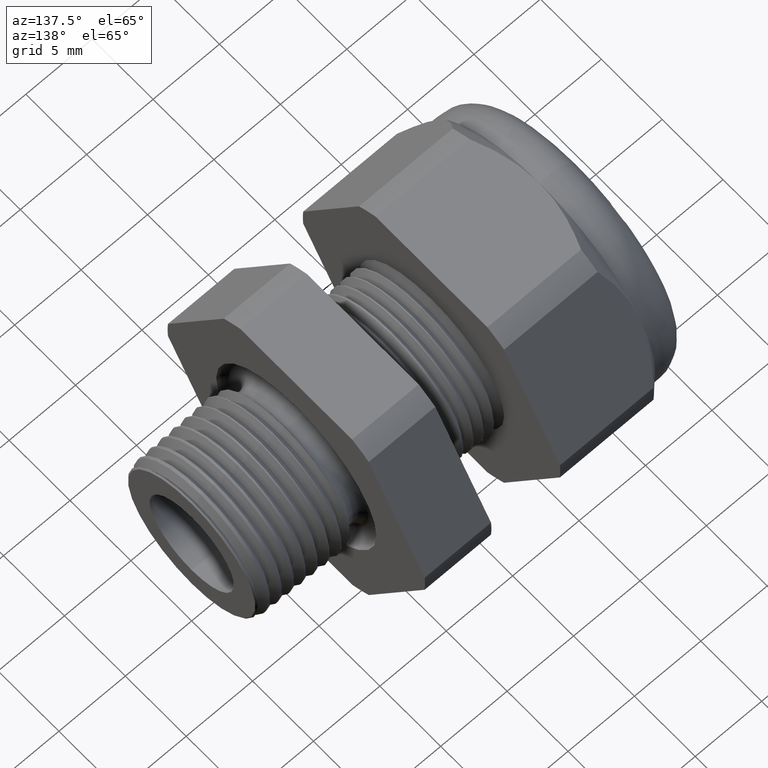
[diagram: clean part render]
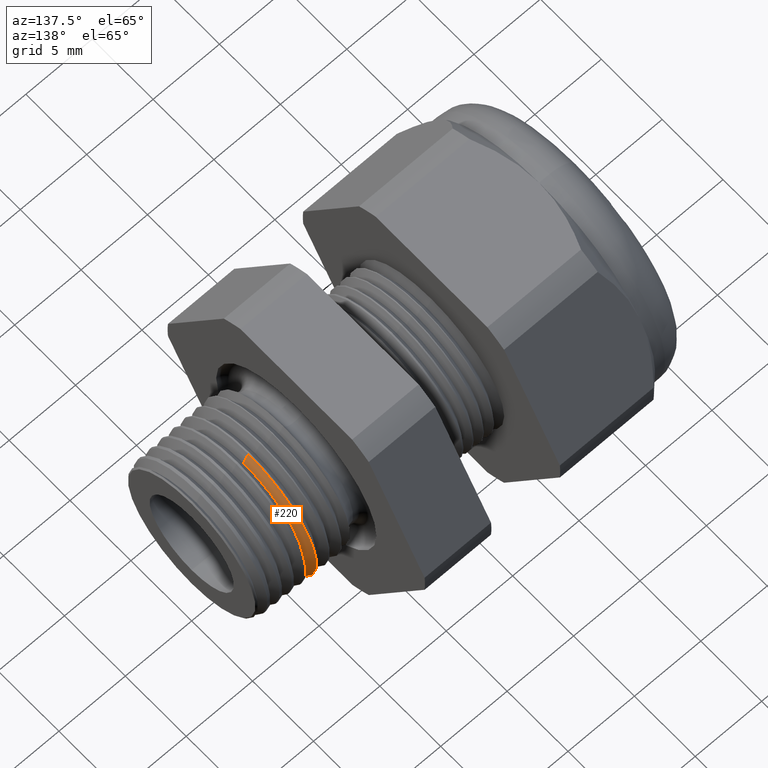
[diagram: same view with one face highlighted and labeled with its STEP entity id]
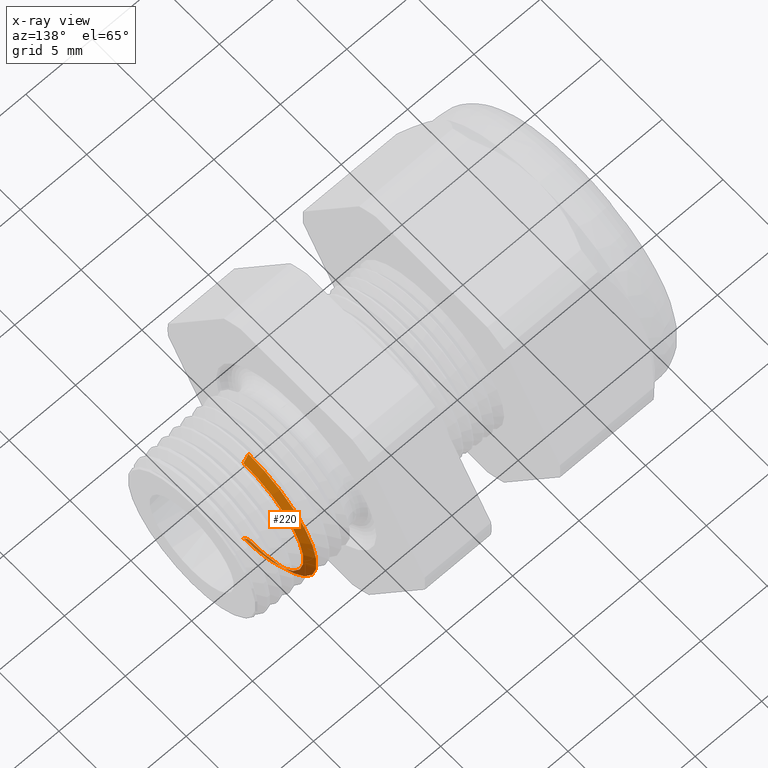
[diagram: x-ray of the same camera — body ghosted, the highlighted face saturated]
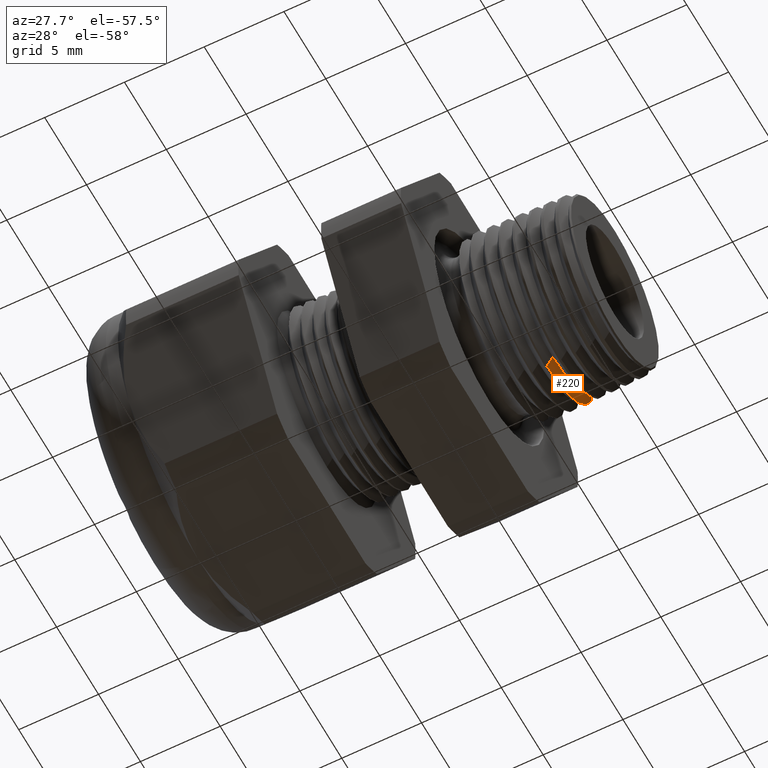
[diagram: same view with one face highlighted and labeled with its STEP entity id]
A machine part, auxiliary view. The second image highlights one B-rep face of the part: STEP entity #220.
The next image is the same camera in x-ray: the body ghosted, the highlighted face saturated — about 6% of this face is hidden behind the body in this view.
A second angle (auxiliary view) of the same face is appended — the face is thin or edge-on in the first view.
In plain terms, the highlighted conical surface has half-angle 61.5 deg.
Its self-contained STEP definition (entity closure, byte-faithful):
#68 = VERTEX_POINT ( 'NONE', #1497 ) ;
#72 = EDGE_CURVE ( 'NONE', #158, #68, #1496, .T. ) ;
#73 = ORIENTED_EDGE ( 'NONE', *, *, #72, .F. ) ;
#78 = EDGE_CURVE ( 'NONE', #225, #68, #1541, .T. ) ;
#79 = ORIENTED_EDGE ( 'NONE', *, *, #78, .T. ) ;
#156 = EDGE_CURVE ( 'NONE', #157, #158, #1649, .T. ) ;
#157 = VERTEX_POINT ( 'NONE', #1645 ) ;
#158 = VERTEX_POINT ( 'NONE', #1644 ) ;
#220 = ADVANCED_FACE ( 'NONE', ( #1764 ), #1826, .T. ) ;
#221 = EDGE_LOOP ( 'NONE', ( #222, #223, #79, #73 ) ) ;
#222 = ORIENTED_EDGE ( 'NONE', *, *, #156, .F. ) ;
#223 = ORIENTED_EDGE ( 'NONE', *, *, #224, .T. ) ;
#224 = EDGE_CURVE ( 'NONE', #157, #225, #1763, .T. ) ;
#225 = VERTEX_POINT ( 'NONE', #1818 ) ;
#1488 = DIRECTION ( 'NONE',  ( -0.4771587602596195100, 0.0000000000000000000, 0.8788171126619593900 ) ) ;
#1489 = VECTOR ( 'NONE', #1488, 39.37007874015748100 ) ;
#1490 = CARTESIAN_POINT ( 'NONE',  ( -0.1699999999999999600, 0.0000000000000000000, 0.2245029506528586900 ) ) ;
#1496 = LINE ( 'NONE', #1490, #1489 ) ;
#1497 = CARTESIAN_POINT ( 'NONE',  ( -0.1679808000774190800, 0.0000000000000000000, 0.2207840470223683400 ) ) ;
#1537 = DIRECTION ( 'NONE',  ( 0.0000000000000000000, 0.0000000000000000000, 1.000000000000000000 ) ) ;
#1538 = DIRECTION ( 'NONE',  ( 1.000000000000000000, 0.0000000000000000000, 0.0000000000000000000 ) ) ;
#1539 = CARTESIAN_POINT ( 'NONE',  ( -0.1679808000774190800, 0.0000000000000000000, 0.0000000000000000000 ) ) ;
#1540 = AXIS2_PLACEMENT_3D ( 'NONE', #1539, #1538, #1537 ) ;
#1541 = CIRCLE ( 'NONE', #1540, 0.2207840470223683400 ) ;
#1644 = CARTESIAN_POINT ( 'NONE',  ( -0.1534707356790751800, 0.0000000000000000000, 0.1940598328590287200 ) ) ;
#1645 = CARTESIAN_POINT ( 'NONE',  ( -0.1534707356790751800, 2.540186148213109900E-017, -0.1940598328590287200 ) ) ;
#1646 = DIRECTION ( 'NONE',  ( 0.0000000000000000000, 0.0000000000000000000, -1.000000000000000000 ) ) ;
#1647 = DIRECTION ( 'NONE',  ( 1.000000000000000000, 0.0000000000000000000, 0.0000000000000000000 ) ) ;
#1648 = AXIS2_PLACEMENT_3D ( 'NONE', #1655, #1647, #1646 ) ;
#1649 = CIRCLE ( 'NONE', #1648, 0.1940598328590287200 ) ;
#1655 = CARTESIAN_POINT ( 'NONE',  ( -0.1534707356790751800, 0.0000000000000000000, 0.0000000000000000000 ) ) ;
#1763 = LINE ( 'NONE', #1821, #1820 ) ;
#1764 = FACE_OUTER_BOUND ( 'NONE', #221, .T. ) ;
#1818 = CARTESIAN_POINT ( 'NONE',  ( -0.1679808000774190800, 2.704473888058243300E-017, -0.2207840470223683400 ) ) ;
#1819 = DIRECTION ( 'NONE',  ( -0.4771587602596195100, 1.076240564057387400E-016, -0.8788171126619593900 ) ) ;
#1820 = VECTOR ( 'NONE', #1819, 39.37007874015748100 ) ;
#1821 = CARTESIAN_POINT ( 'NONE',  ( -0.1699999999999999600, 2.749368199161595500E-017, -0.2245029506528586900 ) ) ;
#1822 = DIRECTION ( 'NONE',  ( 0.0000000000000000000, 0.0000000000000000000, 1.000000000000000000 ) ) ;
#1823 = DIRECTION ( 'NONE',  ( -1.000000000000000000, 0.0000000000000000000, 0.0000000000000000000 ) ) ;
#1824 = CARTESIAN_POINT ( 'NONE',  ( -0.1699999999999999600, 0.0000000000000000000, 0.0000000000000000000 ) ) ;
#1825 = AXIS2_PLACEMENT_3D ( 'NONE', #1824, #1823, #1822 ) ;
#1826 = CONICAL_SURFACE ( 'NONE', #1825, 0.2245029506528586900, 1.073377489976500100 ) ;